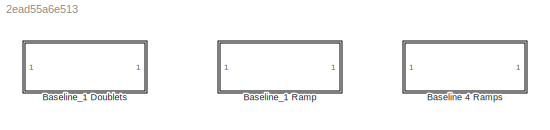
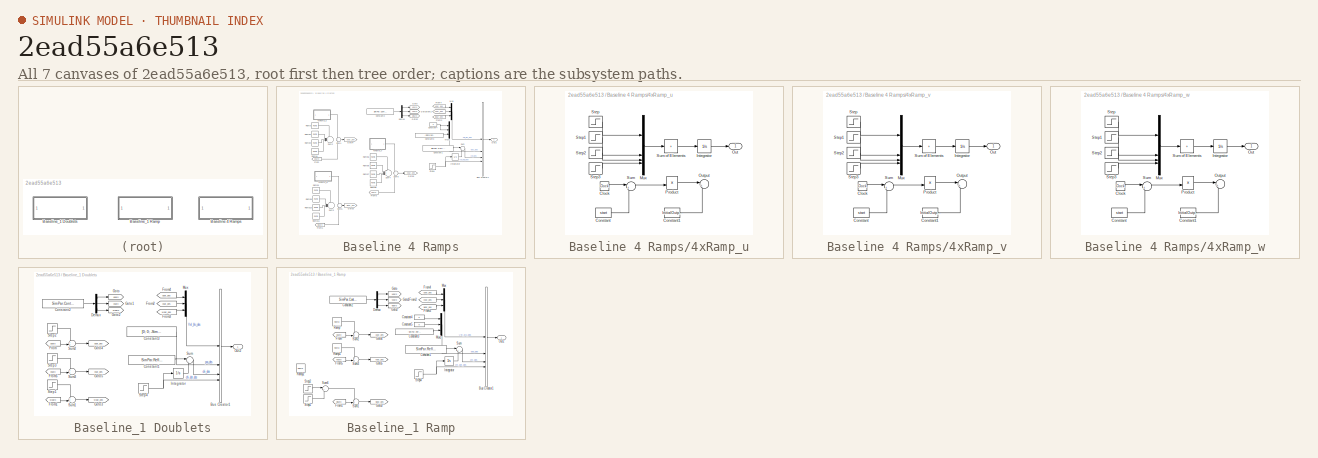
[diagram: thumbnail index - all 7 canvases of the model, root first then tree order]
MODEL slx_2ead55a6e513
KIND library
CONFIG AbsTol = auto
CONFIG EnableMultiTasking = off
CONFIG FixedStep = auto
CONFIG MaxStep = auto
CONFIG MinStep = auto
CONFIG RelTol = 1e-3
CONFIG SampleTimeConstraint = Unconstrained
CONFIG SolverName = VariableStepAuto
CONFIG StartTime = 0.0
CONFIG StopTime = 10.0
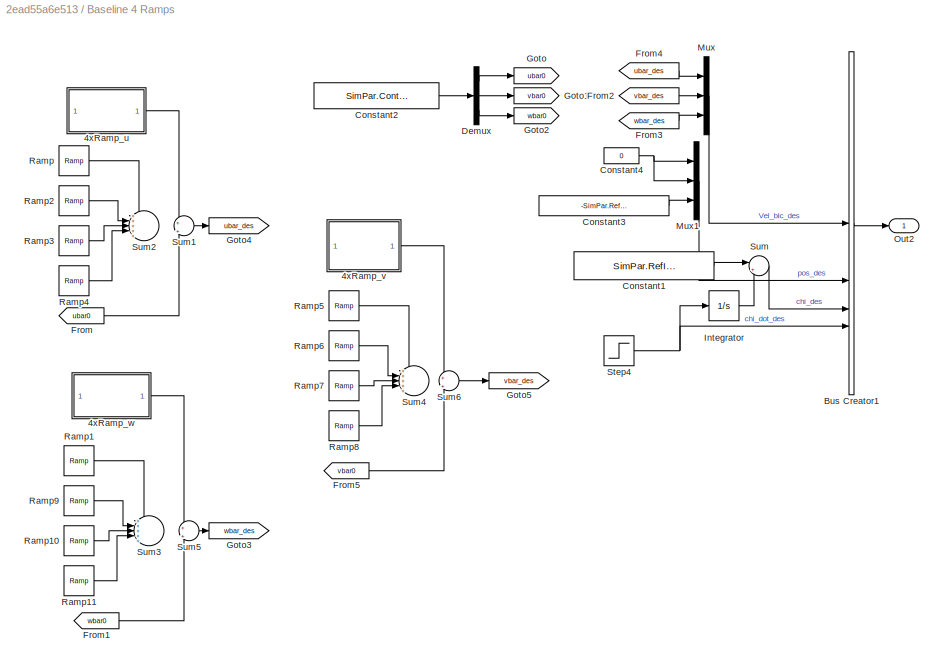
BLOCK [SubSystem] Baseline 4 Ramps
BLOCK [SubSystem] Baseline 4 Ramps/4xRamp_u
BLOCK [Clock] Baseline 4 Ramps/4xRamp_u/Clock
  Commented = on
  DisableCoverage = on
BLOCK [Constant] Baseline 4 Ramps/4xRamp_u/Constant
  Commented = on
  DisableCoverage = on
  OutDataTypeStr = Inherit: Inherit via back propagation
  Value = start
BLOCK [Constant] Baseline 4 Ramps/4xRamp_u/Constant1
  Commented = on
  DisableCoverage = on
  OutDataTypeStr = Inherit: Inherit via back propagation
  Value = InitialOutput
BLOCK [Integrator] Baseline 4 Ramps/4xRamp_u/Integrator
  InitialCondition = sum(InitialOutput)
BLOCK [Mux] Baseline 4 Ramps/4xRamp_u/Mux
  DisplayOption = bar
BLOCK [Outport] Baseline 4 Ramps/4xRamp_u/Out
BLOCK [Sum] Baseline 4 Ramps/4xRamp_u/Output
  Commented = on
  InputSameDT = on
  Inputs = |++
  OutDataTypeStr = Inherit: Same as first input
  SaturateOnIntegerOverflow = on
BLOCK [Product] Baseline 4 Ramps/4xRamp_u/Product
  Commented = on
  DisableCoverage = on
  InputSameDT = on
  OutDataTypeStr = Inherit: Same as first input
  SaturateOnIntegerOverflow = on
BLOCK [Step] Baseline 4 Ramps/4xRamp_u/Step
  After = slope(1)
  DisableCoverage = on
  OutDataTypeStr = fixdt('double', 'DataTypeOverride', 'Off')
  SampleTime = 0
  Time = start(1)
BLOCK [Step] Baseline 4 Ramps/4xRamp_u/Step1
  After = slope(2)
  DisableCoverage = on
  OutDataTypeStr = fixdt('double', 'DataTypeOverride', 'Off')
  SampleTime = 0
  Time = start(2)
BLOCK [Step] Baseline 4 Ramps/4xRamp_u/Step2
  After = slope(3)
  DisableCoverage = on
  OutDataTypeStr = fixdt('double', 'DataTypeOverride', 'Off')
  SampleTime = 0
  Time = start(3)
BLOCK [Step] Baseline 4 Ramps/4xRamp_u/Step3
  After = slope(4)
  DisableCoverage = on
  OutDataTypeStr = fixdt('double', 'DataTypeOverride', 'Off')
  SampleTime = 0
  Time = start(4)
BLOCK [Sum] Baseline 4 Ramps/4xRamp_u/Sum
  Commented = on
  DisableCoverage = on
  InputSameDT = on
  Inputs = |+-
  OutDataTypeStr = Inherit: Same as first input
  SaturateOnIntegerOverflow = on
BLOCK [Sum] Baseline 4 Ramps/4xRamp_u/Sum of Elements
  IconShape = rectangular
  Inputs = +
BLOCK [SubSystem] Baseline 4 Ramps/4xRamp_v
BLOCK [Clock] Baseline 4 Ramps/4xRamp_v/Clock
  Commented = on
  DisableCoverage = on
BLOCK [Constant] Baseline 4 Ramps/4xRamp_v/Constant
  Commented = on
  DisableCoverage = on
  OutDataTypeStr = Inherit: Inherit via back propagation
  Value = start
BLOCK [Constant] Baseline 4 Ramps/4xRamp_v/Constant1
  Commented = on
  DisableCoverage = on
  OutDataTypeStr = Inherit: Inherit via back propagation
  Value = InitialOutput
BLOCK [Integrator] Baseline 4 Ramps/4xRamp_v/Integrator
  InitialCondition = sum(InitialOutput)
BLOCK [Mux] Baseline 4 Ramps/4xRamp_v/Mux
  DisplayOption = bar
BLOCK [Outport] Baseline 4 Ramps/4xRamp_v/Out
BLOCK [Sum] Baseline 4 Ramps/4xRamp_v/Output
  Commented = on
  InputSameDT = on
  Inputs = |++
  OutDataTypeStr = Inherit: Same as first input
  SaturateOnIntegerOverflow = on
BLOCK [Product] Baseline 4 Ramps/4xRamp_v/Product
  Commented = on
  DisableCoverage = on
  InputSameDT = on
  OutDataTypeStr = Inherit: Same as first input
  SaturateOnIntegerOverflow = on
BLOCK [Step] Baseline 4 Ramps/4xRamp_v/Step
  After = slope(1)
  DisableCoverage = on
  OutDataTypeStr = fixdt('double', 'DataTypeOverride', 'Off')
  SampleTime = 0
  Time = start(1)
BLOCK [Step] Baseline 4 Ramps/4xRamp_v/Step1
  After = slope(2)
  DisableCoverage = on
  OutDataTypeStr = fixdt('double', 'DataTypeOverride', 'Off')
  SampleTime = 0
  Time = start(2)
BLOCK [Step] Baseline 4 Ramps/4xRamp_v/Step2
  After = slope(3)
  DisableCoverage = on
  OutDataTypeStr = fixdt('double', 'DataTypeOverride', 'Off')
  SampleTime = 0
  Time = start(3)
BLOCK [Step] Baseline 4 Ramps/4xRamp_v/Step3
  After = slope(4)
  DisableCoverage = on
  OutDataTypeStr = fixdt('double', 'DataTypeOverride', 'Off')
  SampleTime = 0
  Time = start(4)
BLOCK [Sum] Baseline 4 Ramps/4xRamp_v/Sum
  Commented = on
  DisableCoverage = on
  InputSameDT = on
  Inputs = |+-
  OutDataTypeStr = Inherit: Same as first input
  SaturateOnIntegerOverflow = on
BLOCK [Sum] Baseline 4 Ramps/4xRamp_v/Sum of Elements
  IconShape = rectangular
  Inputs = +
BLOCK [SubSystem] Baseline 4 Ramps/4xRamp_w
BLOCK [Clock] Baseline 4 Ramps/4xRamp_w/Clock
  Commented = on
  DisableCoverage = on
BLOCK [Constant] Baseline 4 Ramps/4xRamp_w/Constant
  Commented = on
  DisableCoverage = on
  OutDataTypeStr = Inherit: Inherit via back propagation
  Value = start
BLOCK [Constant] Baseline 4 Ramps/4xRamp_w/Constant1
  Commented = on
  DisableCoverage = on
  OutDataTypeStr = Inherit: Inherit via back propagation
  Value = InitialOutput
BLOCK [Integrator] Baseline 4 Ramps/4xRamp_w/Integrator
  InitialCondition = sum(InitialOutput)
BLOCK [Mux] Baseline 4 Ramps/4xRamp_w/Mux
  DisplayOption = bar
BLOCK [Outport] Baseline 4 Ramps/4xRamp_w/Out
BLOCK [Sum] Baseline 4 Ramps/4xRamp_w/Output
  Commented = on
  InputSameDT = on
  Inputs = |++
  OutDataTypeStr = Inherit: Same as first input
  SaturateOnIntegerOverflow = on
BLOCK [Product] Baseline 4 Ramps/4xRamp_w/Product
  Commented = on
  DisableCoverage = on
  InputSameDT = on
  OutDataTypeStr = Inherit: Same as first input
  SaturateOnIntegerOverflow = on
BLOCK [Step] Baseline 4 Ramps/4xRamp_w/Step
  After = slope(1)
  DisableCoverage = on
  OutDataTypeStr = fixdt('double', 'DataTypeOverride', 'Off')
  SampleTime = 0
  Time = start(1)
BLOCK [Step] Baseline 4 Ramps/4xRamp_w/Step1
  After = slope(2)
  DisableCoverage = on
  OutDataTypeStr = fixdt('double', 'DataTypeOverride', 'Off')
  SampleTime = 0
  Time = start(2)
BLOCK [Step] Baseline 4 Ramps/4xRamp_w/Step2
  After = slope(3)
  DisableCoverage = on
  OutDataTypeStr = fixdt('double', 'DataTypeOverride', 'Off')
  SampleTime = 0
  Time = start(3)
BLOCK [Step] Baseline 4 Ramps/4xRamp_w/Step3
  After = slope(4)
  DisableCoverage = on
  OutDataTypeStr = fixdt('double', 'DataTypeOverride', 'Off')
  SampleTime = 0
  Time = start(4)
BLOCK [Sum] Baseline 4 Ramps/4xRamp_w/Sum
  Commented = on
  DisableCoverage = on
  InputSameDT = on
  Inputs = |+-
  OutDataTypeStr = Inherit: Same as first input
  SaturateOnIntegerOverflow = on
BLOCK [Sum] Baseline 4 Ramps/4xRamp_w/Sum of Elements
  IconShape = rectangular
  Inputs = +
BLOCK [BusCreator] Baseline 4 Ramps/Bus Creator1
  DisplayOption = bar
  InheritFromInputs = on
  Inputs = 4
  OutDataTypeStr = Bus: BUS_REF_INPUT
BLOCK [Constant] Baseline 4 Ramps/Constant1
  Value = SimPar.RefInputs.initialTrack
BLOCK [Constant] Baseline 4 Ramps/Constant2
  Value = SimPar.Control.Vel_bIc_0
BLOCK [Constant] Baseline 4 Ramps/Constant3
  Value = -SimPar.RefInputs.initialAlt
BLOCK [Constant] Baseline 4 Ramps/Constant4
  Value = 0
BLOCK [Demux] Baseline 4 Ramps/Demux
  Outputs = 3
BLOCK [From] Baseline 4 Ramps/From
  GotoTag = ubar0
BLOCK [From] Baseline 4 Ramps/From1
  GotoTag = wbar0
BLOCK [From] Baseline 4 Ramps/From2
  GotoTag = vbar_des
BLOCK [From] Baseline 4 Ramps/From3
  GotoTag = wbar_des
BLOCK [From] Baseline 4 Ramps/From4
  GotoTag = ubar_des
BLOCK [From] Baseline 4 Ramps/From5
  GotoTag = vbar0
BLOCK [Goto] Baseline 4 Ramps/Goto
  GotoTag = ubar0
BLOCK [Goto] Baseline 4 Ramps/Goto1
  GotoTag = vbar0
BLOCK [Goto] Baseline 4 Ramps/Goto2
  GotoTag = wbar0
BLOCK [Goto] Baseline 4 Ramps/Goto3
  GotoTag = wbar_des
BLOCK [Goto] Baseline 4 Ramps/Goto4
  GotoTag = ubar_des
BLOCK [Goto] Baseline 4 Ramps/Goto5
  GotoTag = vbar_des
BLOCK [Integrator] Baseline 4 Ramps/Integrator
BLOCK [Mux] Baseline 4 Ramps/Mux
  DisplayOption = bar
  Inputs = 3
BLOCK [Mux] Baseline 4 Ramps/Mux1
  DisplayOption = bar
  Inputs = 3
BLOCK [Outport] Baseline 4 Ramps/Out2
BLOCK [Reference] Baseline 4 Ramps/Ramp  REF=simulink/Sources/Ramp
  Commented = on
  SourceBlock = simulink/Sources/Ramp
  SourceType = Ramp
BLOCK [Reference] Baseline 4 Ramps/Ramp1  REF=simulink/Sources/Ramp
  Commented = on
  SourceBlock = simulink/Sources/Ramp
  SourceType = Ramp
BLOCK [Reference] Baseline 4 Ramps/Ramp10  REF=simulink/Sources/Ramp
  Commented = on
  SourceBlock = simulink/Sources/Ramp
  SourceType = Ramp
BLOCK [Reference] Baseline 4 Ramps/Ramp11  REF=simulink/Sources/Ramp
  Commented = on
  SourceBlock = simulink/Sources/Ramp
  SourceType = Ramp
BLOCK [Reference] Baseline 4 Ramps/Ramp2  REF=simulink/Sources/Ramp
  Commented = on
  SourceBlock = simulink/Sources/Ramp
  SourceType = Ramp
BLOCK [Reference] Baseline 4 Ramps/Ramp3  REF=simulink/Sources/Ramp
  Commented = on
  SourceBlock = simulink/Sources/Ramp
  SourceType = Ramp
BLOCK [Reference] Baseline 4 Ramps/Ramp4  REF=simulink/Sources/Ramp
  Commented = on
  SourceBlock = simulink/Sources/Ramp
  SourceType = Ramp
BLOCK [Reference] Baseline 4 Ramps/Ramp5  REF=simulink/Sources/Ramp
  Commented = on
  SourceBlock = simulink/Sources/Ramp
  SourceType = Ramp
BLOCK [Reference] Baseline 4 Ramps/Ramp6  REF=simulink/Sources/Ramp
  Commented = on
  SourceBlock = simulink/Sources/Ramp
  SourceType = Ramp
BLOCK [Reference] Baseline 4 Ramps/Ramp7  REF=simulink/Sources/Ramp
  Commented = on
  SourceBlock = simulink/Sources/Ramp
  SourceType = Ramp
BLOCK [Reference] Baseline 4 Ramps/Ramp8  REF=simulink/Sources/Ramp
  Commented = on
  SourceBlock = simulink/Sources/Ramp
  SourceType = Ramp
BLOCK [Reference] Baseline 4 Ramps/Ramp9  REF=simulink/Sources/Ramp
  Commented = on
  SourceBlock = simulink/Sources/Ramp
  SourceType = Ramp
BLOCK [Step] Baseline 4 Ramps/Step4
  After = SimPar.RefInputs.doublets.Track_finalValue
  Before = SimPar.RefInputs.doublets.Track_initialValue
  SampleTime = 0
  Time = SimPar.RefInputs.doublets.Track_stepTime
BLOCK [Sum] Baseline 4 Ramps/Sum
  Inputs = |++
BLOCK [Sum] Baseline 4 Ramps/Sum1
  Inputs = +|+
BLOCK [Sum] Baseline 4 Ramps/Sum2
  Commented = on
  Inputs = +++++
BLOCK [Sum] Baseline 4 Ramps/Sum3
  Commented = on
  Inputs = +++++
BLOCK [Sum] Baseline 4 Ramps/Sum4
  Commented = on
  Inputs = +++++
BLOCK [Sum] Baseline 4 Ramps/Sum5
  Inputs = +|+
BLOCK [Sum] Baseline 4 Ramps/Sum6
  Inputs = +|+
BLOCK [SubSystem] Baseline_1 Doublets
BLOCK [BusCreator] Baseline_1 Doublets/Bus Creator1
  DisplayOption = bar
  InheritFromInputs = on
  Inputs = 4
  OutDataTypeStr = Bus: BUS_REF_INPUT
BLOCK [Constant] Baseline_1 Doublets/Constant1
  Value = SimPar.RefInputs.initialTrack
BLOCK [Constant] Baseline_1 Doublets/Constant2
  Value = SimPar.Control.Vel_bIc_0
BLOCK [Constant] Baseline_1 Doublets/Constant3
  Value = [0; 0; -SimPar.RefInputs.initialAlt]
BLOCK [Demux] Baseline_1 Doublets/Demux
  Outputs = 3
BLOCK [From] Baseline_1 Doublets/From
  GotoTag = ubar0
BLOCK [From] Baseline_1 Doublets/From1
  GotoTag = wbar0
BLOCK [From] Baseline_1 Doublets/From2
  GotoTag = vbar_des
BLOCK [From] Baseline_1 Doublets/From3
  GotoTag = wbar_des
BLOCK [From] Baseline_1 Doublets/From4
  GotoTag = ubar_des
BLOCK [From] Baseline_1 Doublets/From5
  GotoTag = vbar0
BLOCK [Goto] Baseline_1 Doublets/Goto
  GotoTag = ubar0
BLOCK [Goto] Baseline_1 Doublets/Goto1
  GotoTag = vbar0
BLOCK [Goto] Baseline_1 Doublets/Goto2
  GotoTag = wbar0
BLOCK [Goto] Baseline_1 Doublets/Goto3
  GotoTag = wbar_des
BLOCK [Goto] Baseline_1 Doublets/Goto4
  GotoTag = ubar_des
BLOCK [Goto] Baseline_1 Doublets/Goto5
  GotoTag = vbar_des
BLOCK [Integrator] Baseline_1 Doublets/Integrator
BLOCK [Mux] Baseline_1 Doublets/Mux
  DisplayOption = bar
  Inputs = 3
BLOCK [Outport] Baseline_1 Doublets/Out2
BLOCK [Step] Baseline_1 Doublets/Step1
  After = SimPar.RefInputs.doublets.Vel_finalValue(3)
  Before = SimPar.RefInputs.doublets.Vel_initialValue(3)
  SampleTime = 0
  Time = SimPar.RefInputs.doublets.Vel_stepTime(3)
BLOCK [Step] Baseline_1 Doublets/Step2
  After = SimPar.RefInputs.doublets.Vel_finalValue(1)
  Before = SimPar.RefInputs.doublets.Vel_initialValue(1)
  SampleTime = 0
  Time = SimPar.RefInputs.doublets.Vel_stepTime(1)
BLOCK [Step] Baseline_1 Doublets/Step3
  After = SimPar.RefInputs.doublets.Vel_finalValue(2)
  Before = SimPar.RefInputs.doublets.Vel_initialValue(2)
  SampleTime = 0
  Time = SimPar.RefInputs.doublets.Vel_stepTime(2)
BLOCK [Step] Baseline_1 Doublets/Step4
  After = SimPar.RefInputs.doublets.Track_finalValue
  Before = SimPar.RefInputs.doublets.Track_initialValue
  SampleTime = 0
  Time = SimPar.RefInputs.doublets.Track_stepTime
BLOCK [Sum] Baseline_1 Doublets/Sum
  Inputs = |++
BLOCK [Sum] Baseline_1 Doublets/Sum1
  Inputs = ++|
BLOCK [Sum] Baseline_1 Doublets/Sum2
  Inputs = ++|
BLOCK [Sum] Baseline_1 Doublets/Sum3
  Inputs = ++|
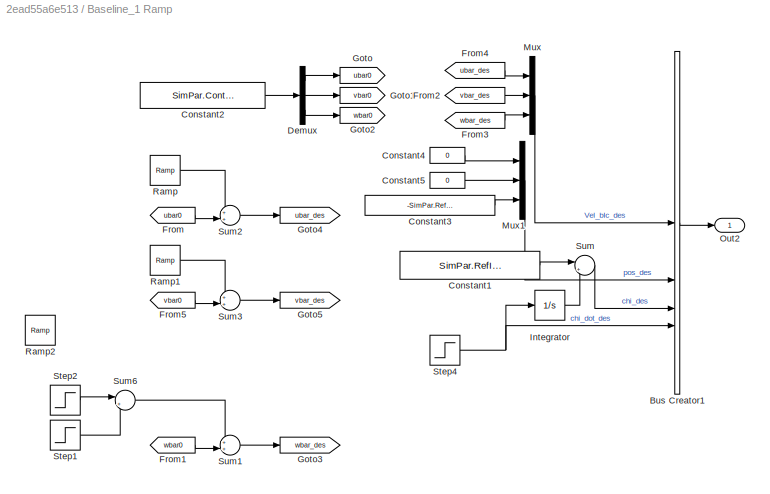
BLOCK [SubSystem] Baseline_1 Ramp
BLOCK [BusCreator] Baseline_1 Ramp/Bus Creator1
  DisplayOption = bar
  InheritFromInputs = on
  Inputs = 4
  OutDataTypeStr = Bus: BUS_REF_INPUT
BLOCK [Constant] Baseline_1 Ramp/Constant1
  Value = SimPar.RefInputs.initialTrack
BLOCK [Constant] Baseline_1 Ramp/Constant2
  Value = SimPar.Control.Vel_bIc_0
BLOCK [Constant] Baseline_1 Ramp/Constant3
  Value = -SimPar.RefInputs.initialAlt
BLOCK [Constant] Baseline_1 Ramp/Constant4
  Value = 0
BLOCK [Constant] Baseline_1 Ramp/Constant5
  Value = 0
BLOCK [Demux] Baseline_1 Ramp/Demux
  Outputs = 3
BLOCK [From] Baseline_1 Ramp/From
  GotoTag = ubar0
BLOCK [From] Baseline_1 Ramp/From1
  GotoTag = wbar0
BLOCK [From] Baseline_1 Ramp/From2
  GotoTag = vbar_des
BLOCK [From] Baseline_1 Ramp/From3
  GotoTag = wbar_des
BLOCK [From] Baseline_1 Ramp/From4
  GotoTag = ubar_des
BLOCK [From] Baseline_1 Ramp/From5
  GotoTag = vbar0
BLOCK [Goto] Baseline_1 Ramp/Goto
  GotoTag = ubar0
BLOCK [Goto] Baseline_1 Ramp/Goto1
  GotoTag = vbar0
BLOCK [Goto] Baseline_1 Ramp/Goto2
  GotoTag = wbar0
BLOCK [Goto] Baseline_1 Ramp/Goto3
  GotoTag = wbar_des
BLOCK [Goto] Baseline_1 Ramp/Goto4
  GotoTag = ubar_des
BLOCK [Goto] Baseline_1 Ramp/Goto5
  GotoTag = vbar_des
BLOCK [Integrator] Baseline_1 Ramp/Integrator
BLOCK [Mux] Baseline_1 Ramp/Mux
  DisplayOption = bar
  Inputs = 3
BLOCK [Mux] Baseline_1 Ramp/Mux1
  DisplayOption = bar
  Inputs = 3
BLOCK [Outport] Baseline_1 Ramp/Out2
BLOCK [Reference] Baseline_1 Ramp/Ramp  REF=simulink/Sources/Ramp
  SourceBlock = simulink/Sources/Ramp
  SourceType = Ramp
BLOCK [Reference] Baseline_1 Ramp/Ramp1  REF=simulink/Sources/Ramp
  SourceBlock = simulink/Sources/Ramp
  SourceType = Ramp
BLOCK [Reference] Baseline_1 Ramp/Ramp2  REF=simulink/Sources/Ramp
  Commented = on
  SourceBlock = simulink/Sources/Ramp
  SourceType = Ramp
BLOCK [Step] Baseline_1 Ramp/Step1
  After = -SimPar.RefInputs.doublets.Vel_finalValue(3)
  Before = SimPar.RefInputs.doublets.Vel_initialValue(3)
  SampleTime = 0
  Time = SimPar.RefInputs.doublets.Vel_stepTime(3)+50
BLOCK [Step] Baseline_1 Ramp/Step2
  After = SimPar.RefInputs.doublets.Vel_finalValue(3)
  Before = SimPar.RefInputs.doublets.Vel_initialValue(3)
  SampleTime = 0
  Time = SimPar.RefInputs.doublets.Vel_stepTime(3)
BLOCK [Step] Baseline_1 Ramp/Step4
  After = SimPar.RefInputs.doublets.Track_finalValue
  Before = SimPar.RefInputs.doublets.Track_initialValue
  SampleTime = 0
  Time = SimPar.RefInputs.doublets.Track_stepTime
BLOCK [Sum] Baseline_1 Ramp/Sum
  Inputs = |++
BLOCK [Sum] Baseline_1 Ramp/Sum1
  Inputs = ++|
BLOCK [Sum] Baseline_1 Ramp/Sum2
  Inputs = ++|
BLOCK [Sum] Baseline_1 Ramp/Sum3
  Inputs = ++|
BLOCK [Sum] Baseline_1 Ramp/Sum6
  Inputs = |++
LINE Baseline 4 Ramps/4xRamp_u/Clock:1 -> Baseline 4 Ramps/4xRamp_u/Sum:1
LINE Baseline 4 Ramps/4xRamp_u/Constant1:1 -> Baseline 4 Ramps/4xRamp_u/Output:2
LINE Baseline 4 Ramps/4xRamp_u/Constant:1 -> Baseline 4 Ramps/4xRamp_u/Sum:2
LINE Baseline 4 Ramps/4xRamp_u/Integrator:1 -> Baseline 4 Ramps/4xRamp_u/Out:1
LINE Baseline 4 Ramps/4xRamp_u/Mux:1 -> Baseline 4 Ramps/4xRamp_u/Sum of Elements:1
LINE Baseline 4 Ramps/4xRamp_u/Product:1 -> Baseline 4 Ramps/4xRamp_u/Output:1
LINE Baseline 4 Ramps/4xRamp_u/Step1:1 -> Baseline 4 Ramps/4xRamp_u/Mux:2
LINE Baseline 4 Ramps/4xRamp_u/Step2:1 -> Baseline 4 Ramps/4xRamp_u/Mux:3
LINE Baseline 4 Ramps/4xRamp_u/Step3:1 -> Baseline 4 Ramps/4xRamp_u/Mux:4
LINE Baseline 4 Ramps/4xRamp_u/Step:1 -> Baseline 4 Ramps/4xRamp_u/Mux:1
LINE Baseline 4 Ramps/4xRamp_u/Sum of Elements:1 -> Baseline 4 Ramps/4xRamp_u/Integrator:1
LINE Baseline 4 Ramps/4xRamp_u/Sum:1 -> Baseline 4 Ramps/4xRamp_u/Product:2
LINE Baseline 4 Ramps/4xRamp_u:1 -> Baseline 4 Ramps/Sum1:1
LINE Baseline 4 Ramps/4xRamp_v/Clock:1 -> Baseline 4 Ramps/4xRamp_v/Sum:1
LINE Baseline 4 Ramps/4xRamp_v/Constant1:1 -> Baseline 4 Ramps/4xRamp_v/Output:2
LINE Baseline 4 Ramps/4xRamp_v/Constant:1 -> Baseline 4 Ramps/4xRamp_v/Sum:2
LINE Baseline 4 Ramps/4xRamp_v/Integrator:1 -> Baseline 4 Ramps/4xRamp_v/Out:1
LINE Baseline 4 Ramps/4xRamp_v/Mux:1 -> Baseline 4 Ramps/4xRamp_v/Sum of Elements:1
LINE Baseline 4 Ramps/4xRamp_v/Product:1 -> Baseline 4 Ramps/4xRamp_v/Output:1
LINE Baseline 4 Ramps/4xRamp_v/Step1:1 -> Baseline 4 Ramps/4xRamp_v/Mux:2
LINE Baseline 4 Ramps/4xRamp_v/Step2:1 -> Baseline 4 Ramps/4xRamp_v/Mux:3
LINE Baseline 4 Ramps/4xRamp_v/Step3:1 -> Baseline 4 Ramps/4xRamp_v/Mux:4
LINE Baseline 4 Ramps/4xRamp_v/Step:1 -> Baseline 4 Ramps/4xRamp_v/Mux:1
LINE Baseline 4 Ramps/4xRamp_v/Sum of Elements:1 -> Baseline 4 Ramps/4xRamp_v/Integrator:1
LINE Baseline 4 Ramps/4xRamp_v/Sum:1 -> Baseline 4 Ramps/4xRamp_v/Product:2
LINE Baseline 4 Ramps/4xRamp_v:1 -> Baseline 4 Ramps/Sum6:1
LINE Baseline 4 Ramps/4xRamp_w/Clock:1 -> Baseline 4 Ramps/4xRamp_w/Sum:1
LINE Baseline 4 Ramps/4xRamp_w/Constant1:1 -> Baseline 4 Ramps/4xRamp_w/Output:2
LINE Baseline 4 Ramps/4xRamp_w/Constant:1 -> Baseline 4 Ramps/4xRamp_w/Sum:2
LINE Baseline 4 Ramps/4xRamp_w/Integrator:1 -> Baseline 4 Ramps/4xRamp_w/Out:1
LINE Baseline 4 Ramps/4xRamp_w/Mux:1 -> Baseline 4 Ramps/4xRamp_w/Sum of Elements:1
LINE Baseline 4 Ramps/4xRamp_w/Product:1 -> Baseline 4 Ramps/4xRamp_w/Output:1
LINE Baseline 4 Ramps/4xRamp_w/Step1:1 -> Baseline 4 Ramps/4xRamp_w/Mux:2
LINE Baseline 4 Ramps/4xRamp_w/Step2:1 -> Baseline 4 Ramps/4xRamp_w/Mux:3
LINE Baseline 4 Ramps/4xRamp_w/Step3:1 -> Baseline 4 Ramps/4xRamp_w/Mux:4
LINE Baseline 4 Ramps/4xRamp_w/Step:1 -> Baseline 4 Ramps/4xRamp_w/Mux:1
LINE Baseline 4 Ramps/4xRamp_w/Sum of Elements:1 -> Baseline 4 Ramps/4xRamp_w/Integrator:1
LINE Baseline 4 Ramps/4xRamp_w/Sum:1 -> Baseline 4 Ramps/4xRamp_w/Product:2
LINE Baseline 4 Ramps/4xRamp_w:1 -> Baseline 4 Ramps/Sum5:1
LINE Baseline 4 Ramps/Bus Creator1:1 -> Baseline 4 Ramps/Out2:1
LINE Baseline 4 Ramps/Constant1:1 -> Baseline 4 Ramps/Sum:1
LINE Baseline 4 Ramps/Constant2:1 -> Baseline 4 Ramps/Demux:1
LINE Baseline 4 Ramps/Constant3:1 -> Baseline 4 Ramps/Mux1:3
NET Baseline 4 Ramps/Constant4:1 -> Baseline 4 Ramps/Mux1:1, Baseline 4 Ramps/Mux1:2
LINE Baseline 4 Ramps/Demux:1 -> Baseline 4 Ramps/Goto:1
LINE Baseline 4 Ramps/Demux:2 -> Baseline 4 Ramps/Goto1:1
LINE Baseline 4 Ramps/Demux:3 -> Baseline 4 Ramps/Goto2:1
LINE Baseline 4 Ramps/From1:1 -> Baseline 4 Ramps/Sum5:2
LINE Baseline 4 Ramps/From2:1 -> Baseline 4 Ramps/Mux:2
LINE Baseline 4 Ramps/From3:1 -> Baseline 4 Ramps/Mux:3
LINE Baseline 4 Ramps/From4:1 -> Baseline 4 Ramps/Mux:1
LINE Baseline 4 Ramps/From5:1 -> Baseline 4 Ramps/Sum6:2
LINE Baseline 4 Ramps/From:1 -> Baseline 4 Ramps/Sum1:2
LINE Baseline 4 Ramps/Integrator:1 -> Baseline 4 Ramps/Sum:2
LINE Baseline 4 Ramps/Mux1:1 -> Baseline 4 Ramps/Bus Creator1:2
LINE Baseline 4 Ramps/Mux:1 -> Baseline 4 Ramps/Bus Creator1:1
LINE Baseline 4 Ramps/Ramp10:1 -> Baseline 4 Ramps/Sum3:3
LINE Baseline 4 Ramps/Ramp11:1 -> Baseline 4 Ramps/Sum3:4
LINE Baseline 4 Ramps/Ramp1:1 -> Baseline 4 Ramps/Sum3:1
LINE Baseline 4 Ramps/Ramp2:1 -> Baseline 4 Ramps/Sum2:2
LINE Baseline 4 Ramps/Ramp3:1 -> Baseline 4 Ramps/Sum2:3
LINE Baseline 4 Ramps/Ramp4:1 -> Baseline 4 Ramps/Sum2:4
LINE Baseline 4 Ramps/Ramp5:1 -> Baseline 4 Ramps/Sum4:1
LINE Baseline 4 Ramps/Ramp6:1 -> Baseline 4 Ramps/Sum4:2
LINE Baseline 4 Ramps/Ramp7:1 -> Baseline 4 Ramps/Sum4:3
LINE Baseline 4 Ramps/Ramp8:1 -> Baseline 4 Ramps/Sum4:4
LINE Baseline 4 Ramps/Ramp9:1 -> Baseline 4 Ramps/Sum3:2
LINE Baseline 4 Ramps/Ramp:1 -> Baseline 4 Ramps/Sum2:1
NET Baseline 4 Ramps/Step4:1 -> Baseline 4 Ramps/Bus Creator1:4, Baseline 4 Ramps/Integrator:1
LINE Baseline 4 Ramps/Sum1:1 -> Baseline 4 Ramps/Goto4:1
LINE Baseline 4 Ramps/Sum5:1 -> Baseline 4 Ramps/Goto3:1
LINE Baseline 4 Ramps/Sum6:1 -> Baseline 4 Ramps/Goto5:1
LINE Baseline 4 Ramps/Sum:1 -> Baseline 4 Ramps/Bus Creator1:3
LINE Baseline_1 Doublets/Bus Creator1:1 -> Baseline_1 Doublets/Out2:1
LINE Baseline_1 Doublets/Constant1:1 -> Baseline_1 Doublets/Sum:1
LINE Baseline_1 Doublets/Constant2:1 -> Baseline_1 Doublets/Demux:1
LINE Baseline_1 Doublets/Constant3:1 -> Baseline_1 Doublets/Bus Creator1:2
LINE Baseline_1 Doublets/Demux:1 -> Baseline_1 Doublets/Goto:1
LINE Baseline_1 Doublets/Demux:2 -> Baseline_1 Doublets/Goto1:1
LINE Baseline_1 Doublets/Demux:3 -> Baseline_1 Doublets/Goto2:1
LINE Baseline_1 Doublets/From1:1 -> Baseline_1 Doublets/Sum1:2
LINE Baseline_1 Doublets/From2:1 -> Baseline_1 Doublets/Mux:2
LINE Baseline_1 Doublets/From3:1 -> Baseline_1 Doublets/Mux:3
LINE Baseline_1 Doublets/From4:1 -> Baseline_1 Doublets/Mux:1
LINE Baseline_1 Doublets/From5:1 -> Baseline_1 Doublets/Sum3:2
LINE Baseline_1 Doublets/From:1 -> Baseline_1 Doublets/Sum2:2
LINE Baseline_1 Doublets/Integrator:1 -> Baseline_1 Doublets/Sum:2
LINE Baseline_1 Doublets/Mux:1 -> Baseline_1 Doublets/Bus Creator1:1
LINE Baseline_1 Doublets/Step1:1 -> Baseline_1 Doublets/Sum1:1
LINE Baseline_1 Doublets/Step2:1 -> Baseline_1 Doublets/Sum2:1
LINE Baseline_1 Doublets/Step3:1 -> Baseline_1 Doublets/Sum3:1
NET Baseline_1 Doublets/Step4:1 -> Baseline_1 Doublets/Bus Creator1:4, Baseline_1 Doublets/Integrator:1
LINE Baseline_1 Doublets/Sum1:1 -> Baseline_1 Doublets/Goto3:1
LINE Baseline_1 Doublets/Sum2:1 -> Baseline_1 Doublets/Goto4:1
LINE Baseline_1 Doublets/Sum3:1 -> Baseline_1 Doublets/Goto5:1
LINE Baseline_1 Doublets/Sum:1 -> Baseline_1 Doublets/Bus Creator1:3
LINE Baseline_1 Ramp/Bus Creator1:1 -> Baseline_1 Ramp/Out2:1
LINE Baseline_1 Ramp/Constant1:1 -> Baseline_1 Ramp/Sum:1
LINE Baseline_1 Ramp/Constant2:1 -> Baseline_1 Ramp/Demux:1
LINE Baseline_1 Ramp/Constant3:1 -> Baseline_1 Ramp/Mux1:3
LINE Baseline_1 Ramp/Constant4:1 -> Baseline_1 Ramp/Mux1:1
LINE Baseline_1 Ramp/Constant5:1 -> Baseline_1 Ramp/Mux1:2
LINE Baseline_1 Ramp/Demux:1 -> Baseline_1 Ramp/Goto:1
LINE Baseline_1 Ramp/Demux:2 -> Baseline_1 Ramp/Goto1:1
LINE Baseline_1 Ramp/Demux:3 -> Baseline_1 Ramp/Goto2:1
LINE Baseline_1 Ramp/From1:1 -> Baseline_1 Ramp/Sum1:2
LINE Baseline_1 Ramp/From2:1 -> Baseline_1 Ramp/Mux:2
LINE Baseline_1 Ramp/From3:1 -> Baseline_1 Ramp/Mux:3
LINE Baseline_1 Ramp/From4:1 -> Baseline_1 Ramp/Mux:1
LINE Baseline_1 Ramp/From5:1 -> Baseline_1 Ramp/Sum3:2
LINE Baseline_1 Ramp/From:1 -> Baseline_1 Ramp/Sum2:2
LINE Baseline_1 Ramp/Integrator:1 -> Baseline_1 Ramp/Sum:2
LINE Baseline_1 Ramp/Mux1:1 -> Baseline_1 Ramp/Bus Creator1:2
LINE Baseline_1 Ramp/Mux:1 -> Baseline_1 Ramp/Bus Creator1:1
LINE Baseline_1 Ramp/Ramp1:1 -> Baseline_1 Ramp/Sum3:1
LINE Baseline_1 Ramp/Ramp:1 -> Baseline_1 Ramp/Sum2:1
LINE Baseline_1 Ramp/Step1:1 -> Baseline_1 Ramp/Sum6:2
LINE Baseline_1 Ramp/Step2:1 -> Baseline_1 Ramp/Sum6:1
NET Baseline_1 Ramp/Step4:1 -> Baseline_1 Ramp/Bus Creator1:4, Baseline_1 Ramp/Integrator:1
LINE Baseline_1 Ramp/Sum1:1 -> Baseline_1 Ramp/Goto3:1
LINE Baseline_1 Ramp/Sum2:1 -> Baseline_1 Ramp/Goto4:1
LINE Baseline_1 Ramp/Sum3:1 -> Baseline_1 Ramp/Goto5:1
LINE Baseline_1 Ramp/Sum6:1 -> Baseline_1 Ramp/Sum1:1
LINE Baseline_1 Ramp/Sum:1 -> Baseline_1 Ramp/Bus Creator1:3
note: NET lines group one-source signal fan-out (src -> all destinations, sorted); 1:1 wires keep LINE
